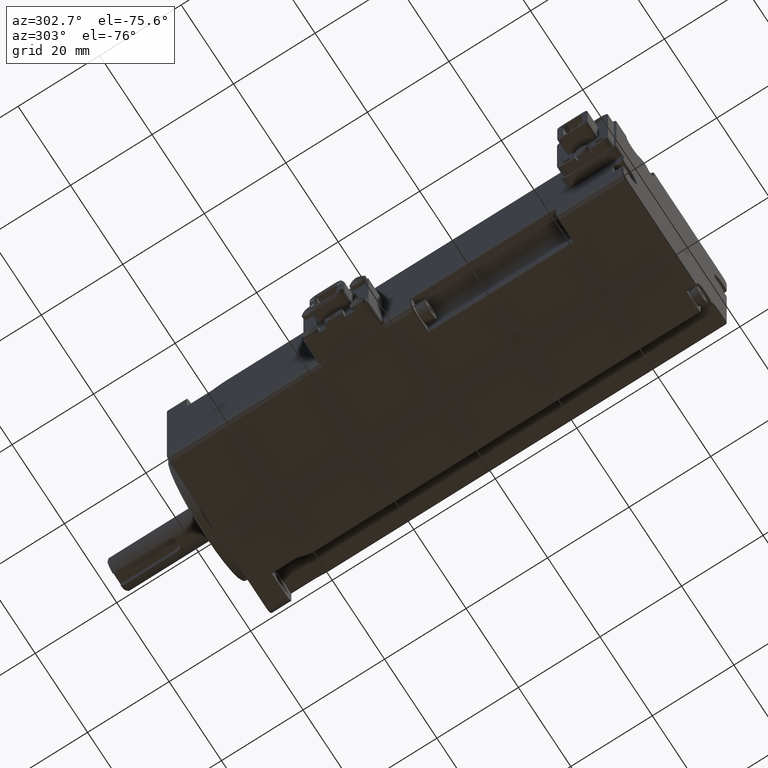
[diagram: clean part render]
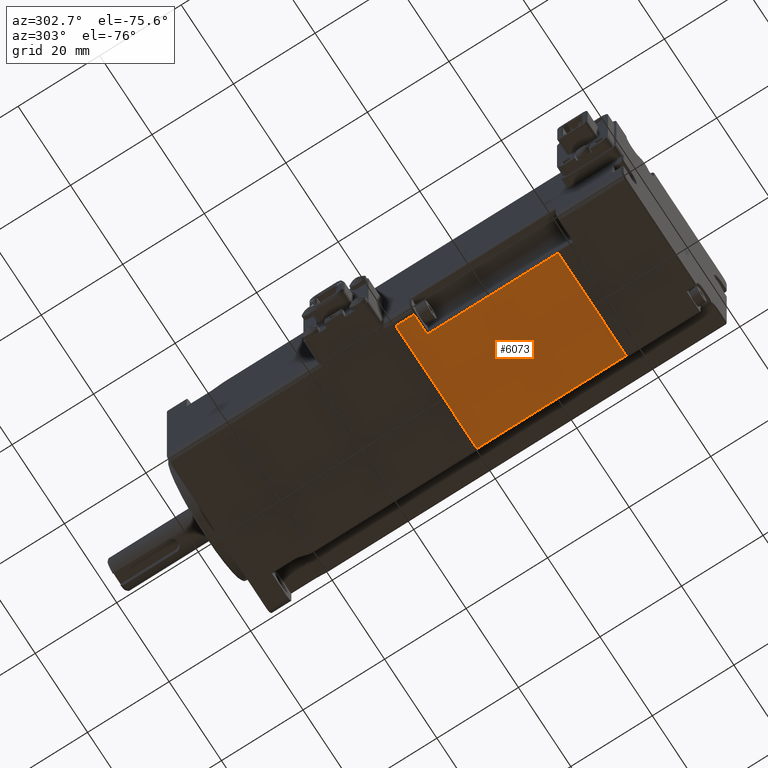
[diagram: same view with one face highlighted and labeled with its STEP entity id]
A machine part, auxiliary view. The second image highlights one B-rep face of the part: STEP entity #6073.
In plain terms, the highlighted planar face has unit normal (0, 0, 1).
Its self-contained STEP definition (entity closure, byte-faithful):
#215 = LINE ( 'NONE', #7870, #13281 ) ;
#338 = DIRECTION ( 'NONE',  ( 4.613964343715449020E-16, 1.000000000000000000, -1.668049390122796326E-15 ) ) ;
#1165 = VECTOR ( 'NONE', #16843, 1000.000000000000000 ) ;
#1943 = VERTEX_POINT ( 'NONE', #21794 ) ;
#2034 = EDGE_CURVE ( 'NONE', #11052, #1943, #22533, .T. ) ;
#2424 = FACE_OUTER_BOUND ( 'NONE', #14685, .T. ) ;
#3143 = EDGE_CURVE ( 'NONE', #19803, #7754, #19647, .T. ) ;
#3286 = CARTESIAN_POINT ( 'NONE',  ( -18.00000000000020250, -2.081668171172168513E-14, -19.99999999999978684 ) ) ;
#3843 = CARTESIAN_POINT ( 'NONE',  ( -13.00345596729075659, -4.500000000000024869, -19.99999999999981171 ) ) ;
#4219 = EDGE_CURVE ( 'NONE', #8384, #7754, #215, .T. ) ;
#5434 = LINE ( 'NONE', #24619, #1165 ) ;
#6073 = ADVANCED_FACE ( 'NONE', ( #2424 ), #10070, .F. ) ;
#7320 = CARTESIAN_POINT ( 'NONE',  ( -13.00345596729077080, -37.00000000000002842, -19.99999999999975842 ) ) ;
#7754 = VERTEX_POINT ( 'NONE', #3286 ) ;
#7851 = DIRECTION ( 'NONE',  ( -1.000000000000000000, 4.613964343715577210E-16, 7.646661082105764094E-15 ) ) ;
#7870 = CARTESIAN_POINT ( 'NONE',  ( -18.00000000000022027, -37.00000000000002132, -19.99999999999972289 ) ) ;
#7952 = DIRECTION ( 'NONE',  ( -1.000000000000000000, 4.613964343715577210E-16, 7.646661082105764094E-15 ) ) ;
#8075 = LINE ( 'NONE', #19626, #13950 ) ;
#8384 = VERTEX_POINT ( 'NONE', #13765 ) ;
#9626 = ORIENTED_EDGE ( 'NONE', *, *, #10834, .T. ) ;
#9699 = DIRECTION ( 'NONE',  ( -1.000000000000000000, 4.613964343715577210E-16, 7.646661082105764094E-15 ) ) ;
#10070 = PLANE ( 'NONE',  #15815 ) ;
#10520 = EDGE_CURVE ( 'NONE', #17134, #8384, #8075, .T. ) ;
#10834 = EDGE_CURVE ( 'NONE', #19803, #1943, #5434, .T. ) ;
#10849 = DIRECTION ( 'NONE',  ( 4.613964343715449020E-16, 1.000000000000000000, -1.668049390122796326E-15 ) ) ;
#11052 = VERTEX_POINT ( 'NONE', #16322 ) ;
#13123 = CARTESIAN_POINT ( 'NONE',  ( -13.00345596729077080, -36.60000000000002984, -19.99999999999975842 ) ) ;
#13228 = VECTOR ( 'NONE', #7851, 1000.000000000000000 ) ;
#13281 = VECTOR ( 'NONE', #338, 1000.000000000000000 ) ;
#13765 = CARTESIAN_POINT ( 'NONE',  ( -18.00000000000020606, -4.500000000000024869, -19.99999999999977973 ) ) ;
#13950 = VECTOR ( 'NONE', #7952, 1000.000000000000000 ) ;
#13990 = CARTESIAN_POINT ( 'NONE',  ( -20.00000000000020250, -1.734723475976807094E-14, -19.99999999999976907 ) ) ;
#14685 = EDGE_LOOP ( 'NONE', ( #22629, #17478, #14896, #21345, #9626, #20810 ) ) ;
#14896 = ORIENTED_EDGE ( 'NONE', *, *, #4219, .T. ) ;
#15815 = AXIS2_PLACEMENT_3D ( 'NONE', #23113, #23360, #9699 ) ;
#16322 = CARTESIAN_POINT ( 'NONE',  ( -13.00345596729077080, -36.60000000000002984, -19.99999999999975842 ) ) ;
#16843 = DIRECTION ( 'NONE',  ( -4.613964343715449020E-16, -1.000000000000000000, 1.668049390122796326E-15 ) ) ;
#17134 = VERTEX_POINT ( 'NONE', #3843 ) ;
#17478 = ORIENTED_EDGE ( 'NONE', *, *, #10520, .T. ) ;
#18013 = EDGE_CURVE ( 'NONE', #11052, #17134, #18249, .T. ) ;
#18249 = LINE ( 'NONE', #7320, #24298 ) ;
#19626 = CARTESIAN_POINT ( 'NONE',  ( -20.00000000000020606, -4.500000000000021316, -19.99999999999976197 ) ) ;
#19647 = LINE ( 'NONE', #13990, #13228 ) ;
#19803 = VERTEX_POINT ( 'NONE', #21262 ) ;
#20810 = ORIENTED_EDGE ( 'NONE', *, *, #2034, .F. ) ;
#21262 = CARTESIAN_POINT ( 'NONE',  ( 13.00345596729043152, -3.816391647148975608E-14, -20.00000000000002132 ) ) ;
#21345 = ORIENTED_EDGE ( 'NONE', *, *, #3143, .F. ) ;
#21794 = CARTESIAN_POINT ( 'NONE',  ( 13.00345596729041908, -36.60000000000003695, -19.99999999999995737 ) ) ;
#22379 = VECTOR ( 'NONE', #24540, 1000.000000000000000 ) ;
#22533 = LINE ( 'NONE', #13123, #22379 ) ;
#22629 = ORIENTED_EDGE ( 'NONE', *, *, #18013, .T. ) ;
#23113 = CARTESIAN_POINT ( 'NONE',  ( -20.00000000000022027, -37.00000000000002132, -19.99999999999970512 ) ) ;
#23360 = DIRECTION ( 'NONE',  ( 7.646661082105764094E-15, 1.668049390122792184E-15, 1.000000000000000000 ) ) ;
#24298 = VECTOR ( 'NONE', #10849, 1000.000000000000000 ) ;
#24540 = DIRECTION ( 'NONE',  ( 1.000000000000000000, -4.613964343715578196E-16, -7.726796172171473696E-15 ) ) ;
#24619 = CARTESIAN_POINT ( 'NONE',  ( 13.00345596729041908, -37.00000000000003553, -19.99999999999995737 ) ) ;